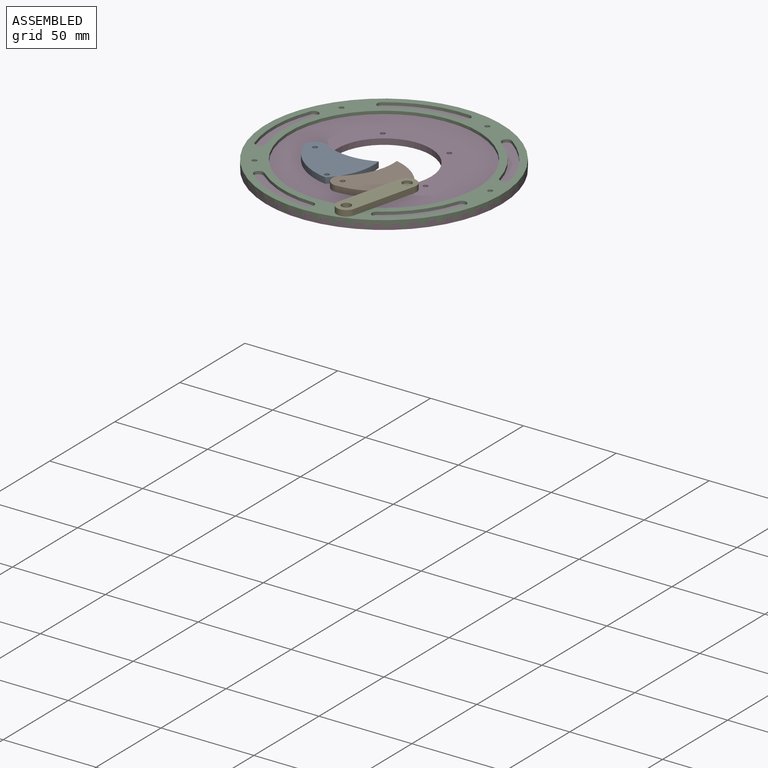
[diagram: assembled view]
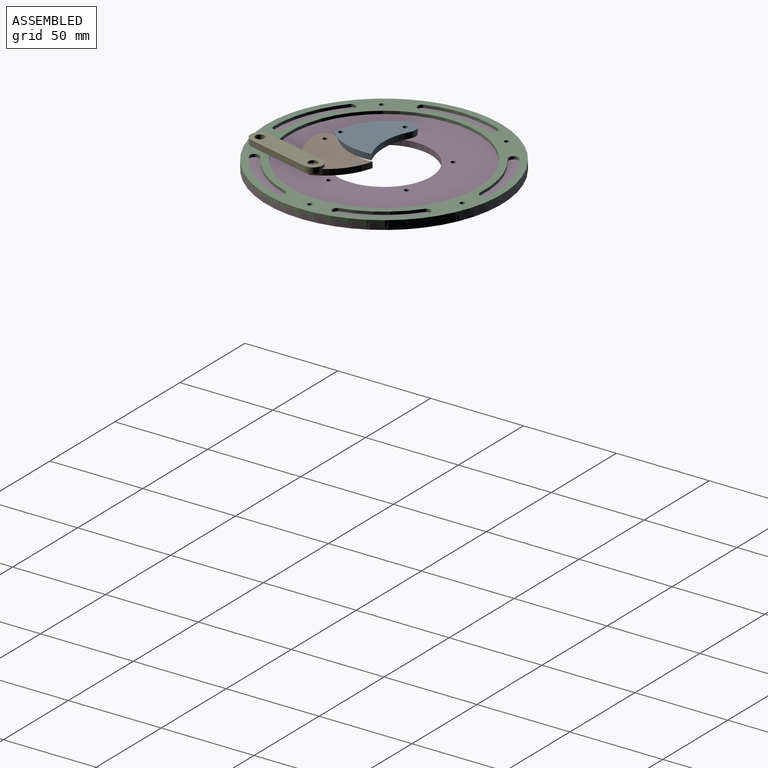
[diagram: assembled view, second angle]
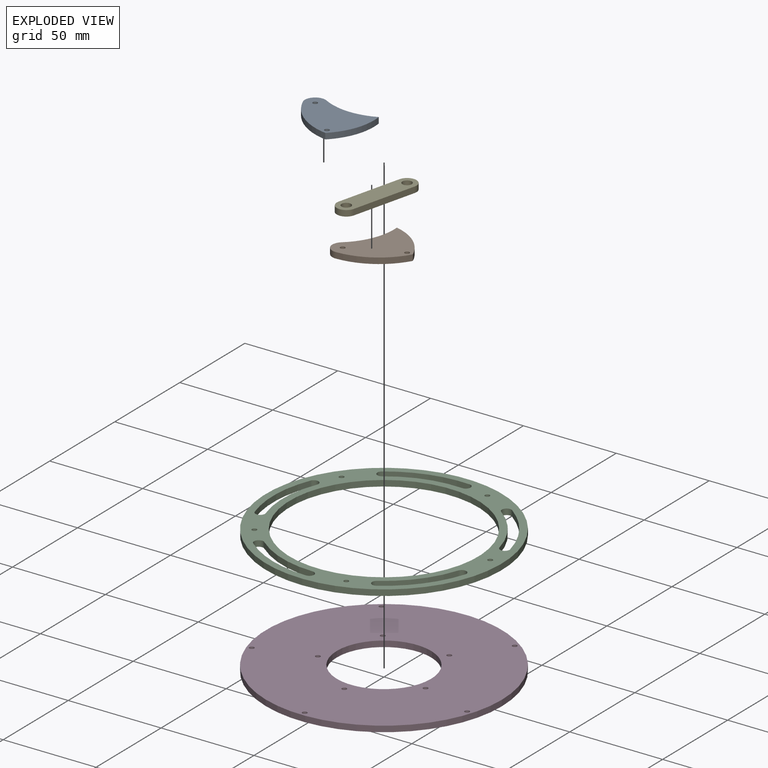
[diagram: exploded view]
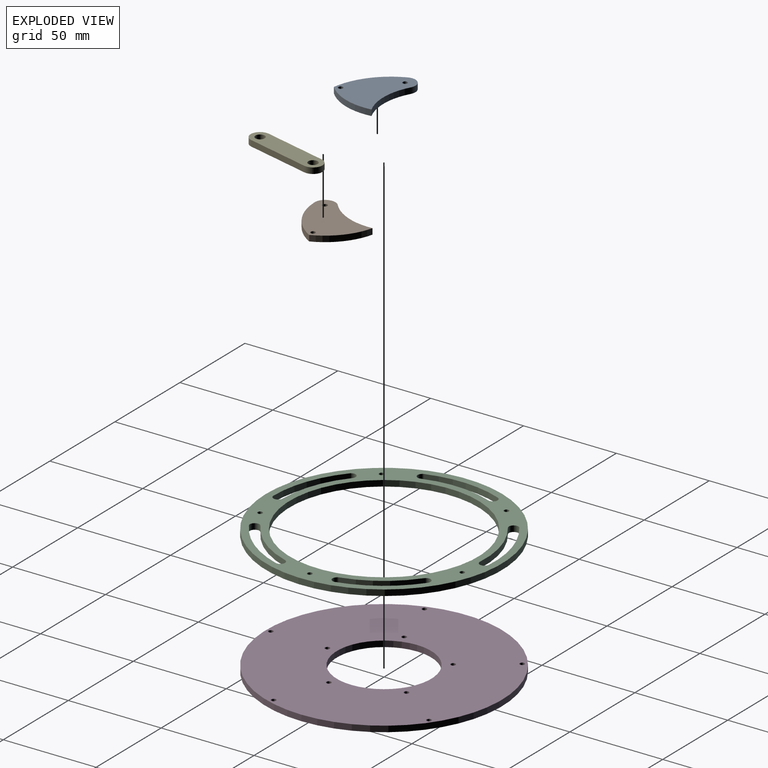
[diagram: exploded view, second angle]
ASSEMBLY  parts=5 mates=6
PART A: 8 faces, bbox 31.3x37.3x3.2 mm
  f0: cylinder r=31.75mm len=25.69mm, axis (0,0,-1), area 95mm2, adj f1,f3,f5,f6
  f1: cylinder r=31.75mm len=28.47mm, axis (0,0,-1), area 95mm2, adj f0,f2,f5,f6
  f2: cylinder r=5.57mm len=8.85mm, axis (0,0,-1), area 45.5mm2, adj f1,f3,f5,f6
  f3: cylinder r=34.75mm len=23.85mm, axis (0,0,-1), area 111.3mm2, adj f0,f2,f5,f6
  f4: cylinder r=1.27mm len=3.18mm, axis (0,0,-1), area 25.3mm2, adj f5,f6
  f5: plane 37.32x31.26mm, normal (0,0,1), area 693.1mm2, adj f0,f1,f2,f3,f4,f7
  f6: plane 37.32x31.26mm, normal (0,0,-1), area 693.1mm2, adj f0,f1,f2,f3,f4,f7
  f7: cylinder r=1.27mm len=3.18mm, axis (0,0,1), area 25.3mm2, adj f5,f6
PART B: same geometry as A
PART C: 29 faces, bbox 127x127x3.2 mm
  f0: cylinder r=50.8mm len=101.6mm, axis (0,0,-1), area 1013.4mm2, adj f2,f3
  f1: cylinder r=63.5mm len=127mm, axis (0,0,-1), area 1266.8mm2, adj f2,f3
  f2: plane 127x127mm, normal (0,0,1), area 3420.3mm2, adj f0,f1,f4,f5,f6,f7,f8,f9
  f3: plane 127x127mm, normal (0,0,-1), area 3420.3mm2, adj f0,f1,f4,f5,f6,f7,f8,f9
  f4: cylinder r=1.27mm len=3.18mm, axis (0,0,1), area 25.3mm2, adj f2,f3
  f5: cylinder r=59.69mm len=40.83mm, axis (0,0,1), area 132.3mm2, adj f2,f3,f6,f8
  f6: cylinder r=2.54mm len=4.93mm, axis (0,0,1), area 25.3mm2, adj f2,f3,f5,f7
  f7: cylinder r=54.61mm len=37.36mm, axis (0,0,1), area 121mm2, adj f2,f3,f6,f8
  f8: cylinder r=2.54mm len=4.93mm, axis (0,0,1), area 25.3mm2, adj f2,f3,f5,f7
  f9: cylinder r=1.27mm len=3.18mm, axis (0,0,1), area 25.3mm2, adj f2,f3
  f10: cylinder r=59.69mm len=38.83mm, axis (0,0,1), area 132.3mm2, adj f2,f3,f11,f13
  f11: cylinder r=2.54mm len=5.08mm, axis (0,0,1), area 25.3mm2, adj f2,f3,f10,f12
  f12: cylinder r=54.61mm len=35.53mm, axis (0,0,1), area 121mm2, adj f2,f3,f11,f13
  f13: cylinder r=2.54mm len=4.54mm, axis (0,0,1), area 25.3mm2, adj f2,f3,f10,f12
  f14: cylinder r=1.27mm len=3.18mm, axis (0,0,1), area 25.3mm2, adj f2,f3
  f15: cylinder r=59.69mm len=33.03mm, axis (0,0,1), area 132.3mm2, adj f2,f3,f16,f18
  f16: cylinder r=2.54mm len=4.98mm, axis (0,0,1), area 25.3mm2, adj f2,f3,f15,f17
  f17: cylinder r=54.61mm len=30.22mm, axis (0,0,1), area 121mm2, adj f2,f3,f16,f18
  f18: cylinder r=2.54mm len=4.65mm, axis (0,0,1), area 25.3mm2, adj f2,f3,f15,f17
  f19: cylinder r=1.27mm len=3.18mm, axis (0,0,1), area 25.3mm2, adj f2,f3
  f20: cylinder r=59.69mm len=33.03mm, axis (0,0,1), area 132.3mm2, adj f2,f3,f21,f23
  f21: cylinder r=2.54mm len=4.65mm, axis (0,0,1), area 25.3mm2, adj f2,f3,f20,f22
  f22: cylinder r=54.61mm len=30.22mm, axis (0,0,1), area 121mm2, adj f2,f3,f21,f23
  f23: cylinder r=2.54mm len=4.98mm, axis (0,0,1), area 25.3mm2, adj f2,f3,f20,f22
  f24: cylinder r=1.27mm len=3.18mm, axis (0,0,1), area 25.3mm2, adj f2,f3
  f25: cylinder r=59.69mm len=38.83mm, axis (0,0,1), area 132.3mm2, adj f2,f3,f26,f28
  f26: cylinder r=2.54mm len=4.54mm, axis (0,0,1), area 25.3mm2, adj f2,f3,f25,f27
  f27: cylinder r=54.61mm len=35.53mm, axis (0,0,1), area 121mm2, adj f2,f3,f26,f28
  f28: cylinder r=2.54mm len=5.08mm, axis (0,0,1), area 25.3mm2, adj f2,f3,f25,f27
PART D: 14 faces, bbox 127x127x3.2 mm
  f0: cylinder r=25.4mm len=50.8mm, axis (0,0,-1), area 506.7mm2, adj f2,f3
  f1: cylinder r=63.5mm len=127mm, axis (0,0,-1), area 1266.8mm2, adj f2,f3
  f2: plane 127x127mm, normal (0,0,1), area 10590.2mm2, adj f0,f1,f4,f5,f6,f7,f8,f9
  f3: plane 127x127mm, normal (0,0,-1), area 10590.2mm2, adj f0,f1,f4,f5,f6,f7,f8,f9
  f4: cylinder r=1.27mm len=3.18mm, axis (0,0,1), area 25.3mm2, adj f2,f3
  f5: cylinder r=1.27mm len=3.18mm, axis (0,0,1), area 25.3mm2, adj f2,f3
  f6: cylinder r=1.27mm len=3.18mm, axis (0,0,1), area 25.3mm2, adj f2,f3
  f7: cylinder r=1.27mm len=3.18mm, axis (0,0,1), area 25.3mm2, adj f2,f3
  f8: cylinder r=1.27mm len=3.18mm, axis (0,0,1), area 25.3mm2, adj f2,f3
  f9: cylinder r=1.27mm len=3.18mm, axis (0,0,1), area 25.3mm2, adj f2,f3
  f10: cylinder r=1.27mm len=3.18mm, axis (0,0,1), area 25.3mm2, adj f2,f3
  f11: cylinder r=1.27mm len=3.18mm, axis (0,0,1), area 25.3mm2, adj f2,f3
  f12: cylinder r=1.27mm len=3.18mm, axis (0,0,1), area 25.3mm2, adj f2,f3
  f13: cylinder r=1.27mm len=3.18mm, axis (0,0,1), area 25.3mm2, adj f2,f3
PART E: 8 faces, bbox 39x30.9x3.2 mm
  f0: cylinder r=5.08mm len=9.2mm, axis (0,0,-1), area 50.7mm2, adj f1,f3,f6,f7
  f1: plane 28.86x20.77mm, normal (-0.58,-0.81,0), area 112.9mm2, adj f0,f2,f6,f7
  f2: cylinder r=5.08mm len=9.2mm, axis (0,0,-1), area 50.7mm2, adj f1,f3,f6,f7
  f3: plane 28.86x20.77mm, normal (0.58,0.81,0), area 112.9mm2, adj f0,f2,f6,f7
  f4: cylinder r=2.54mm len=5.08mm, axis (0,0,-1), area 50.7mm2, adj f6,f7
  f5: cylinder r=2.54mm len=5.08mm, axis (0,0,-1), area 50.7mm2, adj f6,f7
  f6: plane 39.02x30.93mm, normal (0,0,1), area 401.8mm2, adj f0,f1,f2,f3,f4,f5
  f7: plane 39.02x30.93mm, normal (0,0,-1), area 401.8mm2, adj f0,f1,f2,f3,f4,f5
PLACE A rot(axis=(0,0,-1),82.9deg) t=(1.31,-5.87,0)mm
PLACE B rot(axis=(0,0,-1),13.9deg) t=(7.6,-0.92,0)mm
PLACE C rot(axis=(0,0,-1),38.2deg) t=(0,0,-1.59)mm
PLACE D at identity fixed
PLACE E rot(axis=(0,0,-1),68.2deg) t=(30.75,6.4,-1.59)mm
MATE revolute D.f2 <-> A.f2  axis (0,0,1) through (-30.2,-9.81,3.18)mm
MATE planar D.f1 <-> C.f0  axis (0,0,1) through (0,0,3.18)mm
MATE cylindrical B.f7 <-> E.f0  axis (0,0,1) through (26.31,-19.81,6.35)mm
MATE revolute B.f2 <-> D.f2  axis (0,0,-1) through (0,-31.75,3.18)mm
MATE cylindrical D.f1 <-> C.f0  axis (0,0,1) through (0,0,3.18)mm
MATE revolute E.f2 <-> C.f24  axis (0,0,-1) through (17.75,-54.32,4.76)mm
